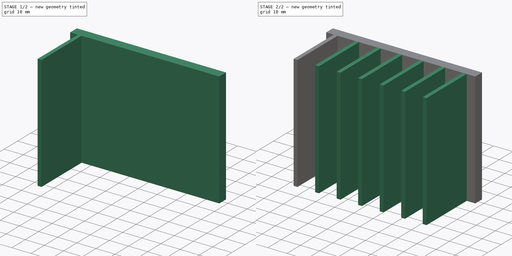
[diagram: build sequence overview — one tinted view per stage of 2, left to right]
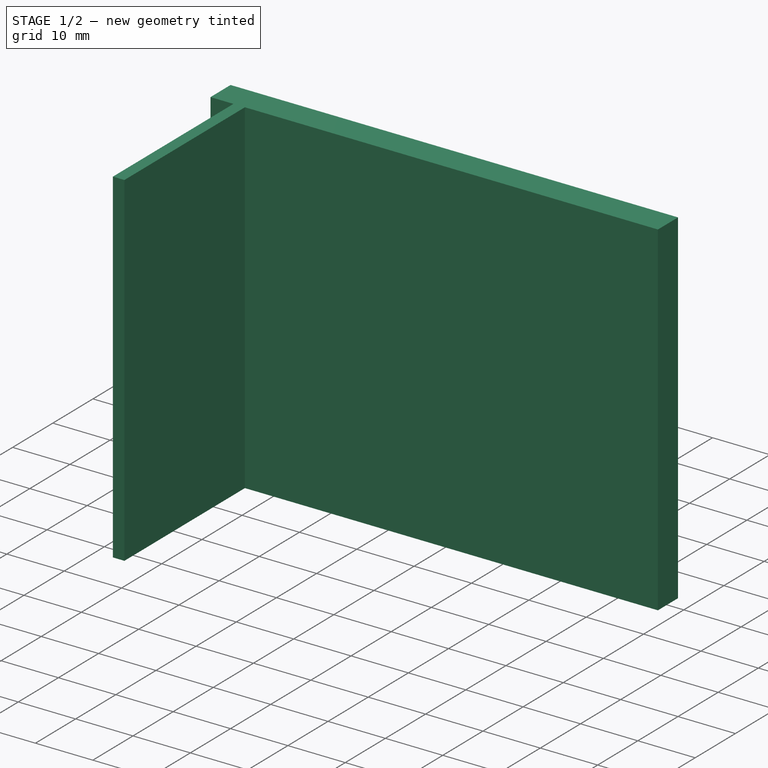
[diagram: stage 1 of 2 — iso view after this stage's code; geometry added in this stage tinted green]
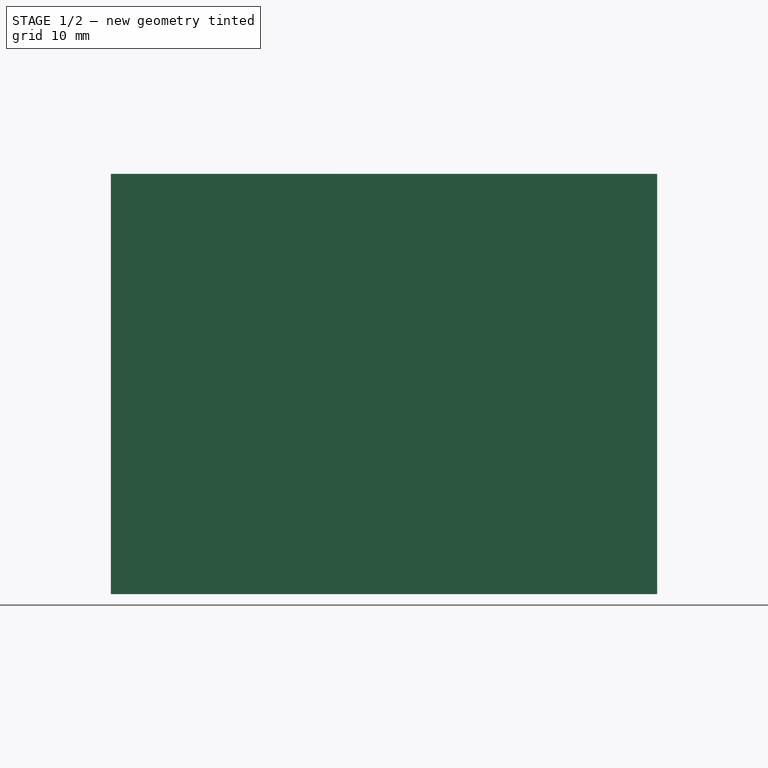
[diagram: stage 1 of 2 — front view after this stage's code; geometry added in this stage tinted green]
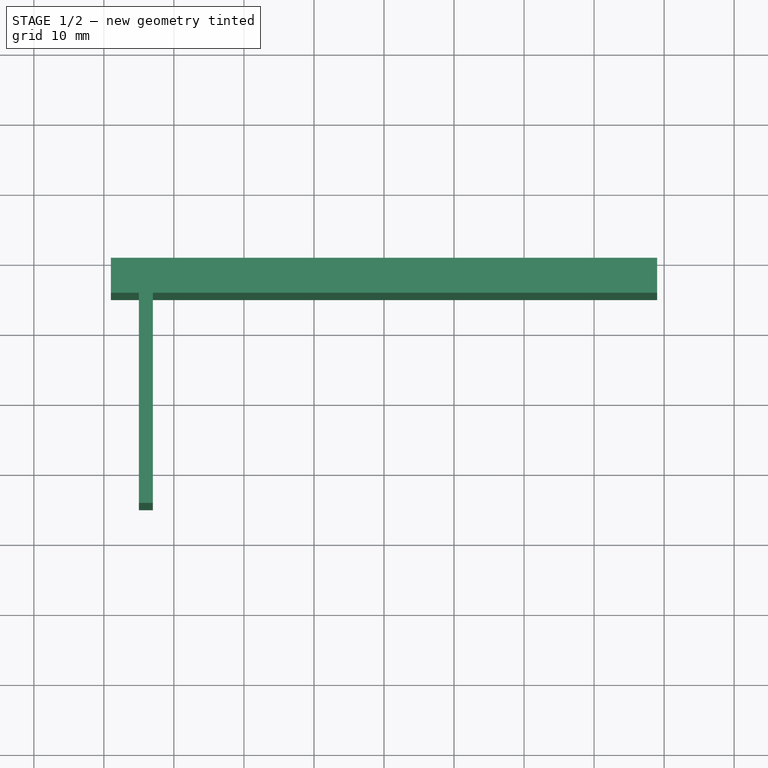
[diagram: stage 1 of 2 — top view after this stage's code; geometry added in this stage tinted green]
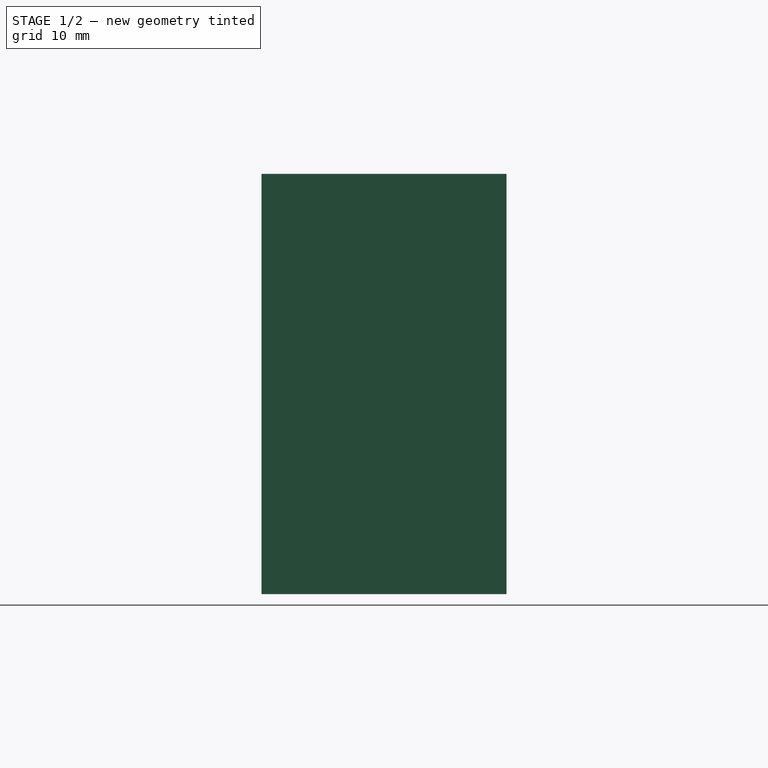
[diagram: stage 1 of 2 — right view after this stage's code; geometry added in this stage tinted green]
FCSTD DOCUMENT  (FreeCAD 0.16R6712 (Git))
Label: RAD-A5723-60
License: All rights reserved
LicenseURL: http://en.wikipedia.org/wiki/All_rights_reserved
objects: Sketcher::SketchObject×2, PartDesign::Pad×2, Image::ImagePlane×1, Part::FeaturePython×1, Part::MultiFuse×1
note: 8 computed .brp shape members not serialized (recipe doc carries the construction recipe); baked Part::Feature solids carry a one-line shape summary decoded from their .brp

FEATURE [Image::ImagePlane] ImagePlane
  Placement = pos=(0,-17.5,0) rot=(0,0,1;0rad)
  XSize = 78
  YSize = 35
FEATURE [Sketcher::SketchObject] Sketch
  sketch-geometry (8):
    g0: LineSegment [constr] StartX=-39 StartY=0 StartZ=0 EndX=39 EndY=0 EndZ=0
    g1: LineSegment [constr] StartX=39 StartY=0 StartZ=0 EndX=39 EndY=-5 EndZ=0
    g2: LineSegment [constr] StartX=39 StartY=-5 StartZ=0 EndX=-39 EndY=-5 EndZ=0
    g3: LineSegment [constr] StartX=-39 StartY=-5 StartZ=0 EndX=-39 EndY=0 EndZ=0
    g4: LineSegment StartX=-35 StartY=-5 StartZ=0 EndX=-33 EndY=-5 EndZ=0
    g5: LineSegment StartX=-33 StartY=-5 StartZ=0 EndX=-33 EndY=-35 EndZ=0
    g6: LineSegment StartX=-33 StartY=-35 StartZ=0 EndX=-35 EndY=-35 EndZ=0
    g7: LineSegment StartX=-35 StartY=-35 StartZ=0 EndX=-35 EndY=-5 EndZ=0
  constraints (24):
    c: Coincident(g0,g1)
    c: Coincident(g1,g2)
    c: Coincident(g2,g3)
    c: Coincident(g3,g0)
    c: Horizontal(g0)
    c: Horizontal(g2)
    c: Vertical(g1)
    c: Vertical(g3)
    c: Symmetric(g0,g0,g-2)
    c: DistanceX(g0,g0) = 78
    c: DistanceY(g1,g1) = 5
    c: PointOnObject(g0,g-1)
    c: Coincident(g4,g5)
    c: Coincident(g5,g6)
    c: Coincident(g6,g7)
    c: Coincident(g7,g4)
    c: Horizontal(g4)
    c: Horizontal(g6)
    c: Vertical(g5)
    c: Vertical(g7)
    c: PointOnObject(g4,g2)
    c: DistanceX(g6,g6) = 2
    c: DistanceY(g7,g7) = 30
    c: DistanceX(g2,g4) = 4
FEATURE [PartDesign::Pad] Pad  label="zeberko"
  Length = 60
  Length2 = 100
  Sketch = -> Sketch
  Type = 0
FEATURE [Sketcher::SketchObject] Sketch001
  sketch-geometry (4):
    g0: LineSegment StartX=-39 StartY=0 StartZ=0 EndX=39 EndY=0 EndZ=0
    g1: LineSegment StartX=39 StartY=0 StartZ=0 EndX=39 EndY=-5 EndZ=0
    g2: LineSegment StartX=39 StartY=-5 StartZ=0 EndX=-39 EndY=-5 EndZ=0
    g3: LineSegment StartX=-39 StartY=-5 StartZ=0 EndX=-39 EndY=0 EndZ=0
  constraints (12):
    c: Coincident(g0,g1)
    c: Coincident(g1,g2)
    c: Coincident(g2,g3)
    c: Coincident(g3,g0)
    c: Horizontal(g0)
    c: Horizontal(g2)
    c: Vertical(g1)
    c: Vertical(g3)
    c: PointOnObject(g0,g-1)
    c: Symmetric(g0,g0,g-2)
    c: DistanceX(g0,g0) = 78
    c: DistanceY(g3,g3) = 5
FEATURE [PartDesign::Pad] Pad001
  Length = 60
  Length2 = 100
  Sketch = -> Sketch001
  Type = 0
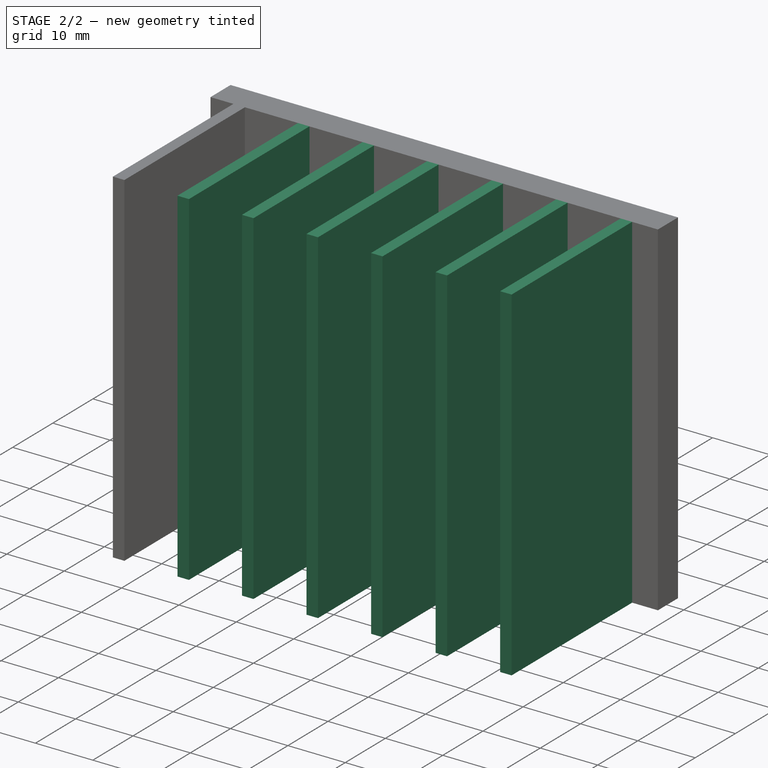
[diagram: stage 2 of 2 — iso view after this stage's code; geometry added in this stage tinted green]
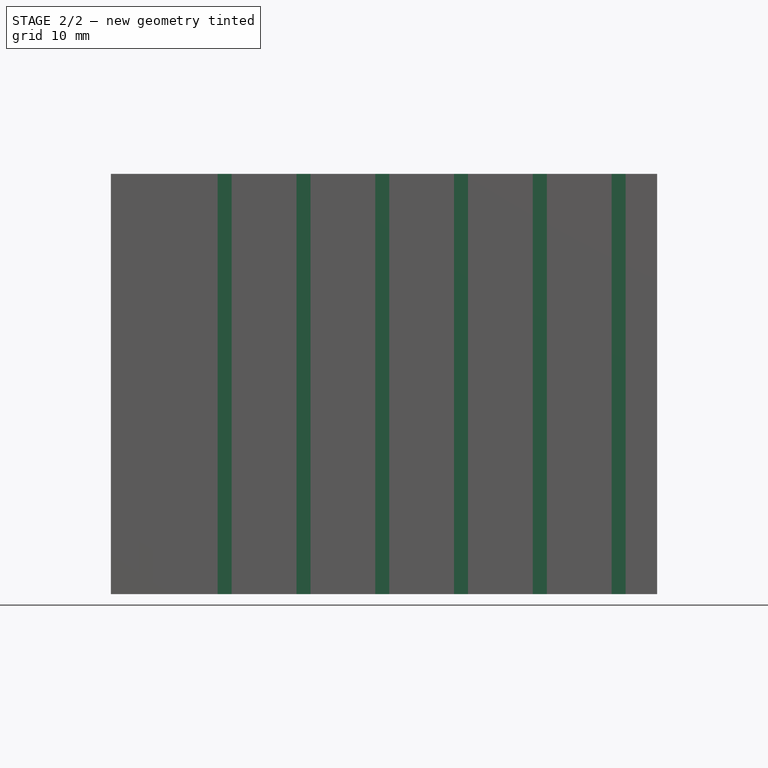
[diagram: stage 2 of 2 — front view after this stage's code; geometry added in this stage tinted green]
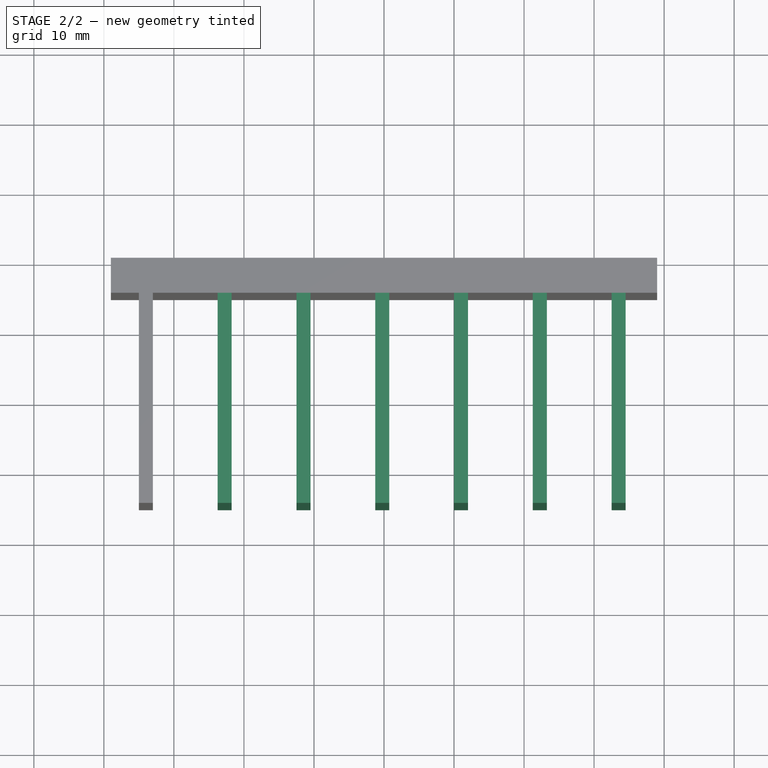
[diagram: stage 2 of 2 — top view after this stage's code; geometry added in this stage tinted green]
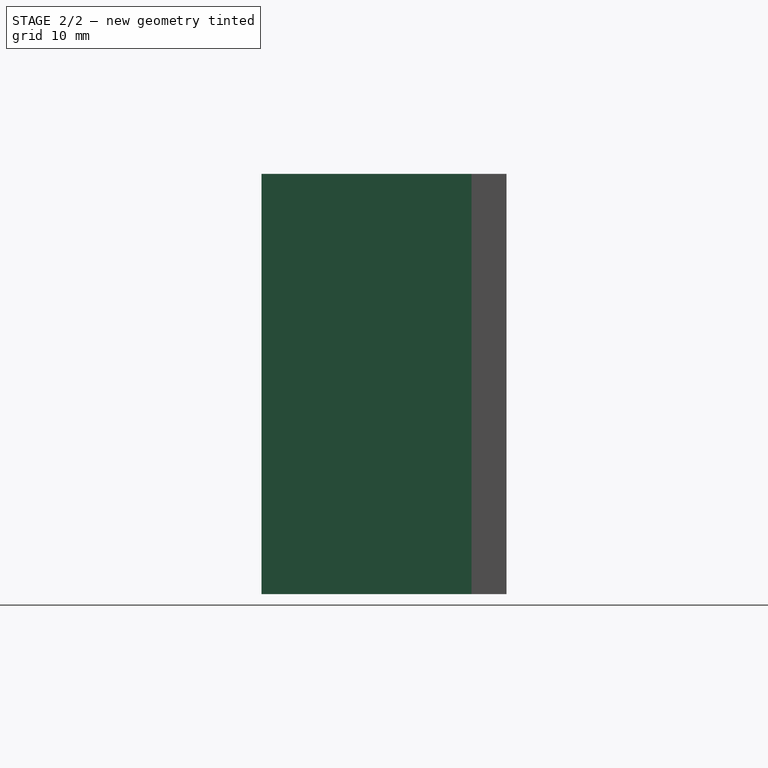
[diagram: stage 2 of 2 — right view after this stage's code; geometry added in this stage tinted green]
FEATURE [Part::FeaturePython] Array  # Draft array (typed FeaturePython)
  Angle = 360
  ArrayType = 0
  Axis = (0,0,1)
  Base = -> Pad
  Center = (0,0,0)
  Fuse = false
  IntervalAxis = (0,0,0)
  IntervalX = (11.25,0,0)
  IntervalY = (0,1,0)
  IntervalZ = (0,0,0)
  NumberPolar = 1
  NumberX = 7
  NumberY = 1
  NumberZ = 1
FEATURE [Part::MultiFuse] Fusion
  Shapes = -> [Array,Pad001]
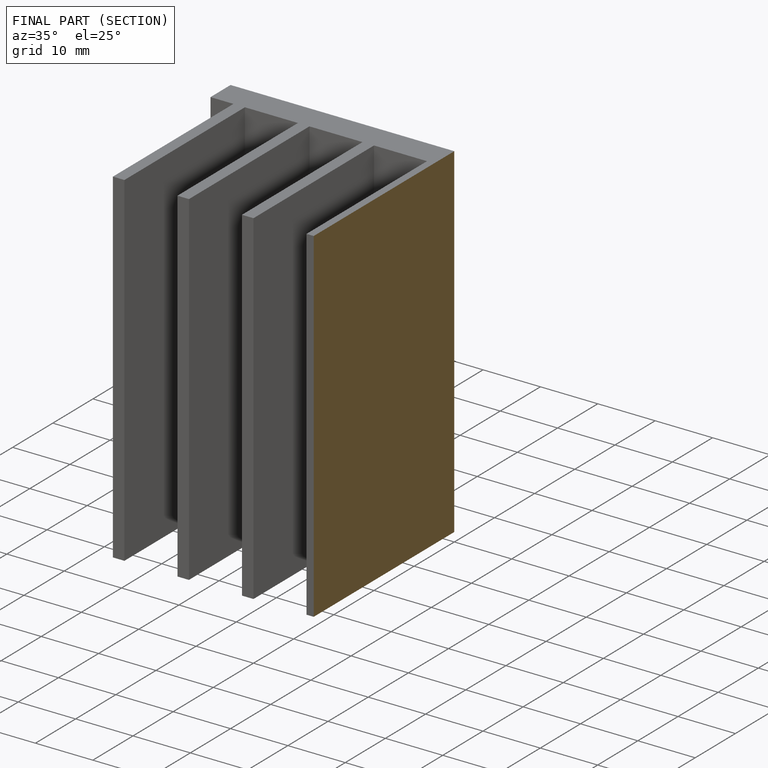
[diagram: finished part — half-section view (interior)]
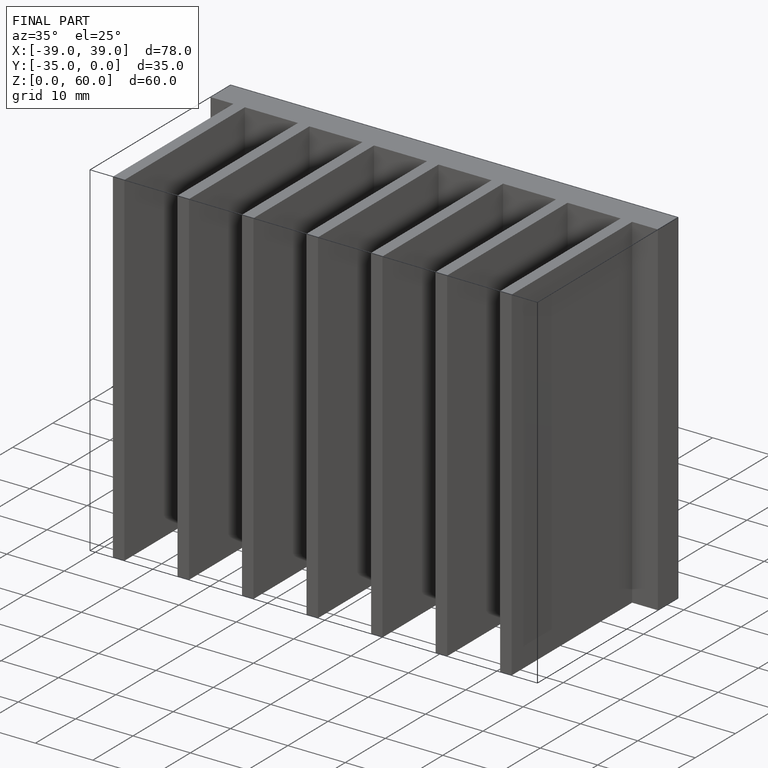
[diagram: finished part — iso view with bounding-box wireframe]
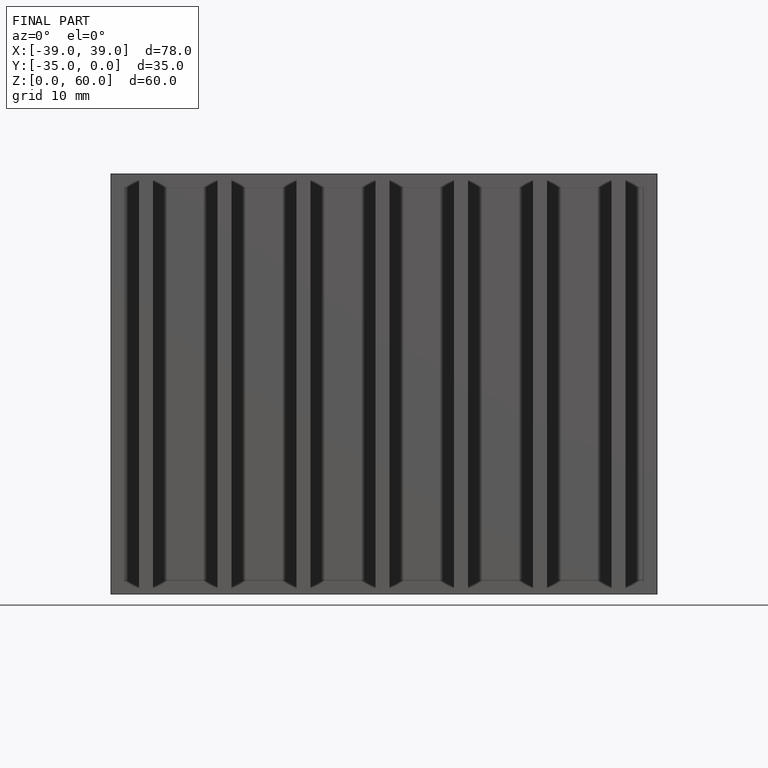
[diagram: finished part — front view with bounding-box wireframe]
